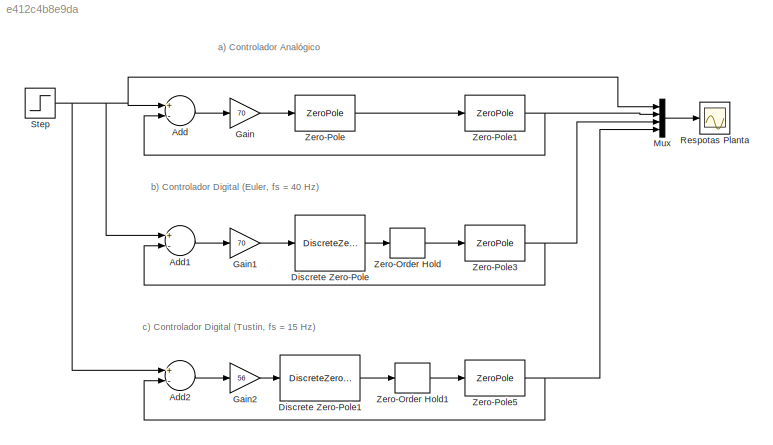
MODEL slx_e412c4b8e9da
KIND model
CONFIG AbsTol = auto
CONFIG EnableMultiTasking = off
CONFIG FixedStep = auto
CONFIG MaxStep = auto
CONFIG MinStep = auto
CONFIG RelTol = 1e-3
CONFIG SampleTimeConstraint = Unconstrained
CONFIG Solver = VariableStepAuto
CONFIG SolverName = VariableStepAuto
CONFIG StartTime = 0.0
CONFIG StopTime = 3
BLOCK [Sum] Add
  InputSameDT = off
  Inputs = +-
  OutDataTypeStr = Inherit: Inherit via internal rule
  Ports = [2, 1]
  SaturateOnIntegerOverflow = off
BLOCK [Sum] Add1
  InputSameDT = off
  Inputs = +-
  OutDataTypeStr = Inherit: Inherit via internal rule
  Ports = [2, 1]
  SaturateOnIntegerOverflow = off
BLOCK [Sum] Add2
  InputSameDT = off
  Inputs = +-
  OutDataTypeStr = Inherit: Inherit via internal rule
  Ports = [2, 1]
  SaturateOnIntegerOverflow = off
BLOCK [DiscreteZeroPole] Discrete Zero-Pole
  Gain = 1
  Poles = [0.75]
  SampleTime = 1/40
  Zeros = [ 0.95]
BLOCK [DiscreteZeroPole] Discrete Zero-Pole1
  Gain = 1
  Poles = [0.5]
  SampleTime = 1/15
  Zeros = [0.875]
BLOCK [Gain] Gain
  Gain = 70
  OutDataTypeStr = Inherit: Inherit via internal rule
  ParamDataTypeStr = Inherit: Inherit via internal rule
  SaturateOnIntegerOverflow = off
BLOCK [Gain] Gain1
  Gain = 70
  OutDataTypeStr = Inherit: Inherit via internal rule
  ParamDataTypeStr = Inherit: Inherit via internal rule
  SaturateOnIntegerOverflow = off
BLOCK [Gain] Gain2
  Gain = 56
  OutDataTypeStr = Inherit: Inherit via internal rule
  ParamDataTypeStr = Inherit: Inherit via internal rule
  SaturateOnIntegerOverflow = off
BLOCK [Mux] Mux
  DisplayOption = bar
  Ports = [4, 1]
BLOCK [Scope] Respotas Planta
  Floating = off
  NumInputPorts = 1
  Ports = [1]
  ScopeSpecificationString = Simulink.scopes.TimeScopeBlockCfg('CurrentConfiguration', extmgr.ConfigurationSet(extmgr.Configuration('Core','General UI',true,'FigureColor',[1 1 1]),extmgr.Configuration('Core','Source UI',true),extmgr.Configuration('Sources','WiredSimulink',true),extmgr.Configuration('Visuals','Time Domain',true,'SerializedDisplays',{struct('MinYLimReal','-0.17146','MaxYLimReal','1.54317','YLabelReal','','MinYL...<+2298ch>
BLOCK [Step] Step
  SampleTime = 0
BLOCK [ZeroOrderHold] Zero-Order Hold
  SampleTime = 1/40
BLOCK [ZeroOrderHold] Zero-Order Hold1
  SampleTime = 1/15
BLOCK [ZeroPole] Zero-Pole
  Poles = [-10]
  Zeros = [-2]
BLOCK [ZeroPole] Zero-Pole1
  Poles = [0 -1]
  Zeros = [ ]
BLOCK [ZeroPole] Zero-Pole3
  Poles = [0 -1]
  Zeros = [ ]
BLOCK [ZeroPole] Zero-Pole5
  Poles = [0 -1]
  Zeros = [ ]
ANNOTATION (root): a) Controlador Analógico
ANNOTATION (root): b) Controlador Digital (Euler, fs = 40 Hz)
ANNOTATION (root): c) Controlador Digital (Tustin, fs = 15 Hz)
LINE Add1:1 -> Gain1:1
LINE Add2:1 -> Gain2:1
LINE Add:1 -> Gain:1
LINE Discrete Zero-Pole1:1 -> Zero-Order Hold1:1
LINE Discrete Zero-Pole:1 -> Zero-Order Hold:1
LINE Gain1:1 -> Discrete Zero-Pole:1
LINE Gain2:1 -> Discrete Zero-Pole1:1
LINE Gain:1 -> Zero-Pole:1
LINE Mux:1 -> Respotas Planta:1
NET Step:1 -> Add1:1, Add2:1, Add:1, Mux:1
LINE Zero-Order Hold1:1 -> Zero-Pole5:1
LINE Zero-Order Hold:1 -> Zero-Pole3:1
NET Zero-Pole1:1 -> Add:2, Mux:2
NET Zero-Pole3:1 -> Add1:2, Mux:3
NET Zero-Pole5:1 -> Add2:2, Mux:4
LINE Zero-Pole:1 -> Zero-Pole1:1
note: NET lines group one-source signal fan-out (src -> all destinations, sorted); 1:1 wires keep LINE
